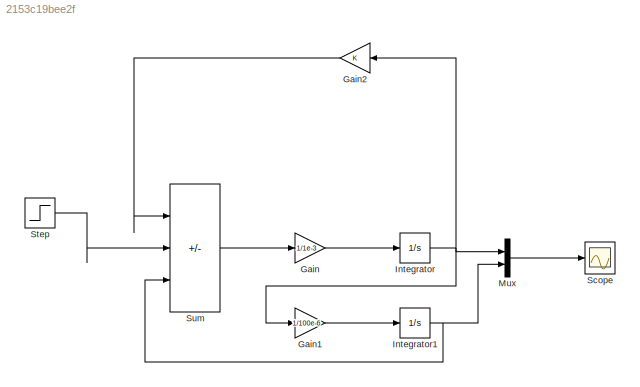
MODEL slx_2153c19bee2f
KIND model
CONFIG AbsTol = auto
CONFIG EnableMultiTasking = off
CONFIG FixedStep = auto
CONFIG MaxStep = auto
CONFIG MinStep = auto
CONFIG RelTol = 1e-3
CONFIG SampleTimeConstraint = Unconstrained
CONFIG SolverName = ode45
CONFIG StartTime = 0.0
CONFIG StopTime = 0.02
BLOCK [Gain] Gain
  Gain = 1/1e-3
BLOCK [Gain] Gain1
  Gain = 1/100e-6
BLOCK [Gain] Gain2
BLOCK [Integrator] Integrator
  Ports = [1, 1]
BLOCK [Integrator] Integrator1
  Ports = [1, 1]
BLOCK [Mux] Mux
  DisplayOption = bar
  Inputs = 2
  Ports = [2, 1]
BLOCK [Scope] Scope
  Floating = off
  NumInputPorts = 1
  Ports = [1]
  ScopeSpecificationString = Simulink.scopes.TimeScopeBlockCfg('CurrentConfiguration', extmgr.ConfigurationSet(extmgr.Configuration('Core','General UI',true),extmgr.Configuration('Core','Source UI',true),extmgr.Configuration('Sources','WiredSimulink',true),extmgr.Configuration('Visuals','Time Domain',true,'SerializedDisplays',{struct('MinYLimReal','-3.67433','MaxYLimReal','18.21187','YLabelReal','','MinYLimMag','0.00000','Max...<+1378ch>
BLOCK [Step] Step
  After = 10
  Before = 10
  SampleTime = 0
  Time = 0
BLOCK [Sum] Sum
  IconShape = rectangular
  Inputs = |-+-
  Ports = [3, 1]
LINE Gain1:1 -> Integrator1:1
LINE Gain2:1 -> Sum:1
LINE Gain:1 -> Integrator:1
NET Integrator1:1 -> Mux:2, Sum:3
NET Integrator:1 -> Gain1:1, Gain2:1, Mux:1
LINE Mux:1 -> Scope:1
LINE Step:1 -> Sum:2
LINE Sum:1 -> Gain:1
note: NET lines group one-source signal fan-out (src -> all destinations, sorted); 1:1 wires keep LINE
